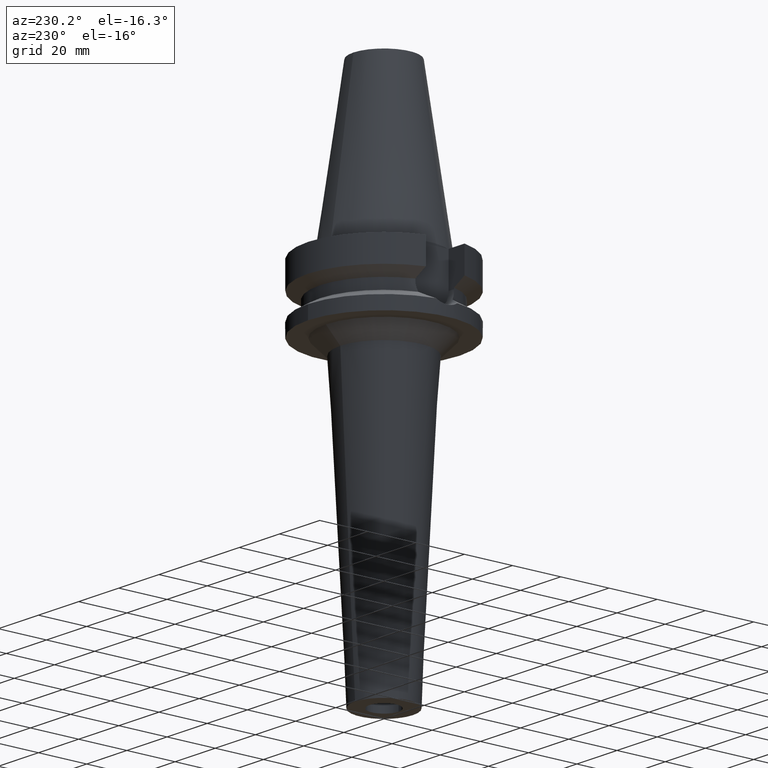
[diagram: clean part render]
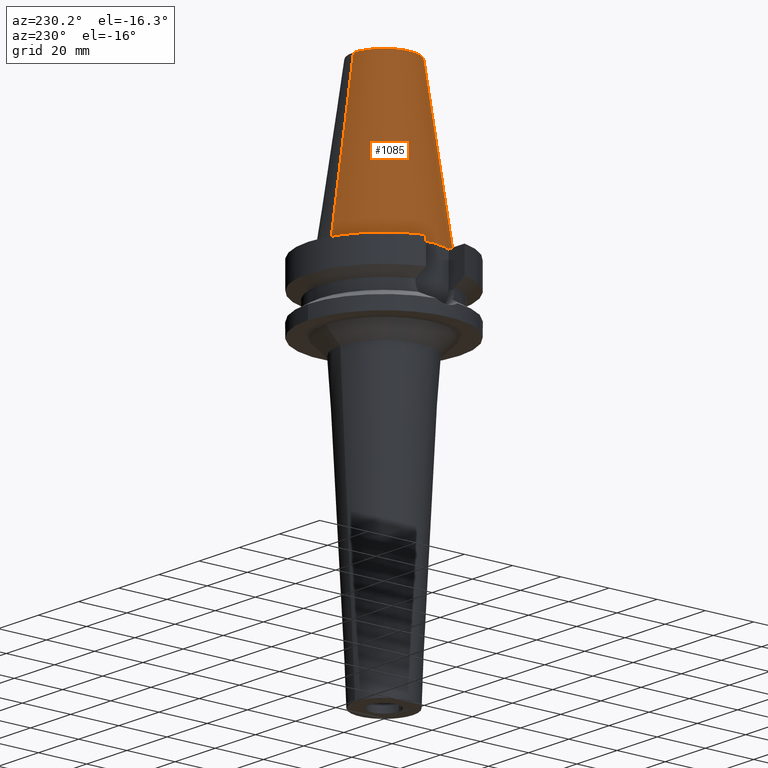
[diagram: same view with one face highlighted and labeled with its STEP entity id]
A machine part, auxiliary view. The second image highlights one B-rep face of the part: STEP entity #1085.
In plain terms, the highlighted conical surface has half-angle 8.297 deg.
Its self-contained STEP definition (entity closure, byte-faithful):
#17=CARTESIAN_POINT('',(0.E0,1.625106302469E-14,6.54E1));
#18=DIRECTION('',(0.E0,0.E0,-1.E0));
#19=DIRECTION('',(0.E0,-1.E0,0.E0));
#20=AXIS2_PLACEMENT_3D('',#17,#18,#19);
#50=DIRECTION('',(0.E0,-1.443043893540E-1,-9.895333461856E-1));
#51=VECTOR('',#50,6.609175956738E1);
#52=CARTESIAN_POINT('',(0.E0,-1.268766899430E1,6.54E1));
#53=LINE('',#52,#51);
#57=CARTESIAN_POINT('',(0.E0,1.625106302469E-14,2.842170943040E-14));
#58=DIRECTION('',(0.E0,0.E0,-1.E0));
#59=DIRECTION('',(0.E0,-1.E0,0.E0));
#60=AXIS2_PLACEMENT_3D('',#57,#58,#59);
#65=DIRECTION('',(0.E0,1.443043893540E-1,-9.895333461856E-1));
#66=VECTOR('',#65,6.609175956738E1);
#67=CARTESIAN_POINT('',(0.E0,1.268766899430E1,6.54E1));
#68=LINE('',#67,#66);
#912=CARTESIAN_POINT('',(0.E0,-1.268766899430E1,6.54E1));
#913=CARTESIAN_POINT('',(0.E0,1.268766899430E1,6.54E1));
#914=VERTEX_POINT('',#912);
#915=VERTEX_POINT('',#913);
#1041=CARTESIAN_POINT('',(0.E0,2.2225E1,6.394884621841E-14));
#1042=VERTEX_POINT('',#1041);
#1043=CARTESIAN_POINT('',(0.E0,-2.2225E1,6.394884621841E-14));
#1044=VERTEX_POINT('',#1043);
#1071=CARTESIAN_POINT('',(0.E0,1.625106302469E-14,3.27E1));
#1072=DIRECTION('',(0.E0,0.E0,-1.E0));
#1073=DIRECTION('',(0.E0,-1.E0,0.E0));
#1074=AXIS2_PLACEMENT_3D('',#1071,#1072,#1073);
#1075=CONICAL_SURFACE('',#1074,1.745633449715E1,8.297E0);
#1077=ORIENTED_EDGE('',*,*,#1076,.F.);
#1078=ORIENTED_EDGE('',*,*,#1058,.F.);
#1080=ORIENTED_EDGE('',*,*,#1079,.T.);
#1082=ORIENTED_EDGE('',*,*,#1081,.T.);
#1083=EDGE_LOOP('',(#1077,#1078,#1080,#1082));
#1084=FACE_OUTER_BOUND('',#1083,.F.);
#21=CIRCLE('',#20,1.268766899430E1);
#61=CIRCLE('',#60,2.2225E1);
#1058=EDGE_CURVE('',#914,#915,#21,.T.);
#1076=EDGE_CURVE('',#915,#1042,#68,.T.);
#1079=EDGE_CURVE('',#914,#1044,#53,.T.);
#1081=EDGE_CURVE('',#1044,#1042,#61,.T.);
#1085=ADVANCED_FACE('',(#1084),#1075,.T.);